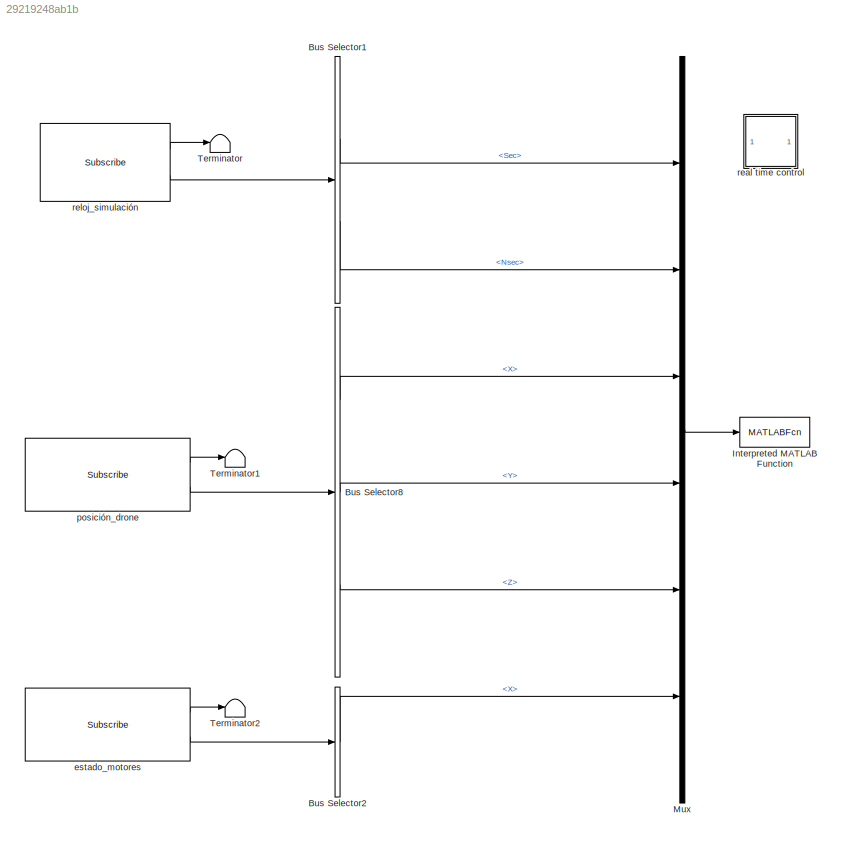
MODEL slx_29219248ab1b
KIND model
CONFIG AbsTol = auto
CONFIG EnableMultiTasking = off
CONFIG FixedStep = 0.2
CONFIG MaxStep = auto
CONFIG MinStep = auto
CONFIG RelTol = 1e-3
CONFIG SampleTimeConstraint = Unconstrained
CONFIG Solver = FixedStepAuto
CONFIG SolverName = FixedStepAuto
CONFIG StartTime = 0.0
CONFIG StopTime = inf
BLOCK [BusSelector] Bus Selector1
  DialogController = Simulink.DDGSource_BusSelector
  OutputAsBus = off
  OutputSignals = Clock_.Sec,Clock_.Nsec
  Ports = [1, 2]
BLOCK [BusSelector] Bus Selector2
  DialogController = Simulink.DDGSource_BusSelector
  OutputAsBus = off
  OutputSignals = Position.X
  Ports = [1, 1]
BLOCK [BusSelector] Bus Selector8
  DialogController = Simulink.DDGSource_BusSelector
  OutputAsBus = off
  OutputSignals = Pose.Position.X,Pose.Position.Y,Pose.Position.Z
  Ports = [1, 3]
BLOCK [MATLABFcn] Interpreted MATLAB Function
  MATLABFcn = game_monitor_func
  OutputDimensions = 0
  Ports = [1]
BLOCK [Mux] Mux
  DisplayOption = bar
  Inputs = 6
  Ports = [6, 1]
BLOCK [Terminator] Terminator
BLOCK [Terminator] Terminator1
BLOCK [Terminator] Terminator2
BLOCK [Reference] estado_motores  REF=robotlib/Subscribe
  Ports = [0, 2]
  SourceBlock = robotlib/Subscribe
  SourceLibraryInfo = This block requires Robotics System Toolbox
  SourceProductBaseCode = RO
  SourceProductName = Robotics System Toolbox
  SourceType = ROS Subscribe
BLOCK [Reference] posición_drone  REF=robotlib/Subscribe
  Ports = [0, 2]
  SourceBlock = robotlib/Subscribe
  SourceLibraryInfo = This block requires Robotics System Toolbox
  SourceProductBaseCode = RO
  SourceProductName = Robotics System Toolbox
  SourceType = ROS Subscribe
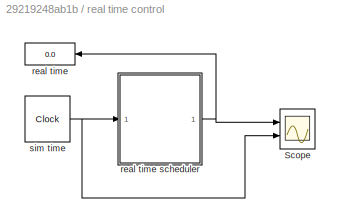
BLOCK [SubSystem] real time control
  Ports = []
  RequestExecContextInheritance = off
  Variant = off
BLOCK [Scope] real time control/Scope
  Commented = on
  NumInputPorts = 2
  Ports = [2]
  ScopeSpecificationString = Simulink.scopes.TimeScopeBlockCfg('CurrentConfiguration', extmgr.ConfigurationSet(extmgr.Configuration('Core','General UI',true),extmgr.Configuration('Core','Source UI',true),extmgr.Configuration('Sources','WiredSimulink',true),extmgr.Configuration('Visuals','Time Domain',true,'SerializedDisplays',{struct('MinYLimReal','0','MaxYLimReal','120','YLabelReal','','MinYLimMag','39.34789','MaxYLimMag','4...<+1531ch>
BLOCK [Display] real time control/real time
  Commented = on
  Decimation = 1
  Format = bank
  Ports = [1]
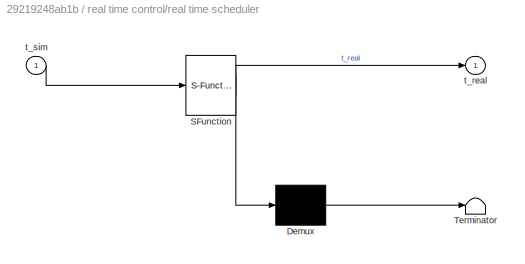
BLOCK [SubSystem] real time control/real time scheduler
  ErrorFcn = Stateflow.Translate.translate
  PermitHierarchicalResolution = ExplicitOnly
  Ports = [1, 1]
  RequestExecContextInheritance = off
  SFBlockType = MATLAB Function
  TreatAsAtomicUnit = on
  Variant = off
BLOCK [Demux] real time control/real time scheduler/ Demux 
  Outputs = 1
  Ports = [1, 1]
BLOCK [S-Function] real time control/real time scheduler/ SFunction 
  EnableBusSupport = on
  FunctionName = sf_sfun
  PortCounts = [1 2]
  Ports = [1, 2]
  SFcnIsStateOwnerBlock = off
  SFunctionDeploymentMode = off
  Tag = Stateflow S-Function game_monitor 2
BLOCK [Terminator] real time control/real time scheduler/ Terminator 
BLOCK [Outport] real time control/real time scheduler/t_real
  IconDisplay = Port number
BLOCK [Inport] real time control/real time scheduler/t_sim
  IconDisplay = Port number
BLOCK [Clock] real time control/sim time
  DisplayTime = on
BLOCK [Reference] reloj_simulación  REF=robotlib/Subscribe
  Ports = [0, 2]
  SourceBlock = robotlib/Subscribe
  SourceLibraryInfo = This block requires Robotics System Toolbox
  SourceProductBaseCode = RO
  SourceProductName = Robotics System Toolbox
  SourceType = ROS Subscribe
LINE Bus Selector1:1 -> Mux:1
LINE Bus Selector1:2 -> Mux:2
LINE Bus Selector2:1 -> Mux:6
LINE Bus Selector8:1 -> Mux:3
LINE Bus Selector8:2 -> Mux:4
LINE Bus Selector8:3 -> Mux:5
LINE Mux:1 -> Interpreted MATLAB Function:1
LINE estado_motores:1 -> Terminator2:1
LINE estado_motores:2 -> Bus Selector2:1
LINE posición_drone:1 -> Terminator1:1
LINE posición_drone:2 -> Bus Selector8:1
NET real time control/real time scheduler:1 -> real time control/Scope:1, real time control/real time:1
NET real time control/sim time:1 -> real time control/Scope:2, real time control/real time scheduler:1
LINE reloj_simulación:1 -> Terminator:1
LINE reloj_simulación:2 -> Bus Selector1:1
note: NET lines group one-source signal fan-out (src -> all destinations, sorted); 1:1 wires keep LINE
CHART real time
control/real time
scheduler states=1 transitions=1
  STATE_LABEL 'eML_blk_kernel()'
  STATE_LABEL "SCRIPT:\nfunction t_real = fcn(t_sim)\n%#codegen\n\ncoder.extrinsic('tic');\ncoder.extrinsic('toc');\n\npersistent t0;\nif isempty(t0)\n    t0 = tic;\n    t_real = 0;\nend\n\nt_real = toc(t0);\n\nt_dif = t_sim - t_real;\nif t_dif > 0\n%    disp(t_dif)\n    pause(t_dif);\nend\n\nt_real = toc(t0);\n%disp(t_real)\n"
